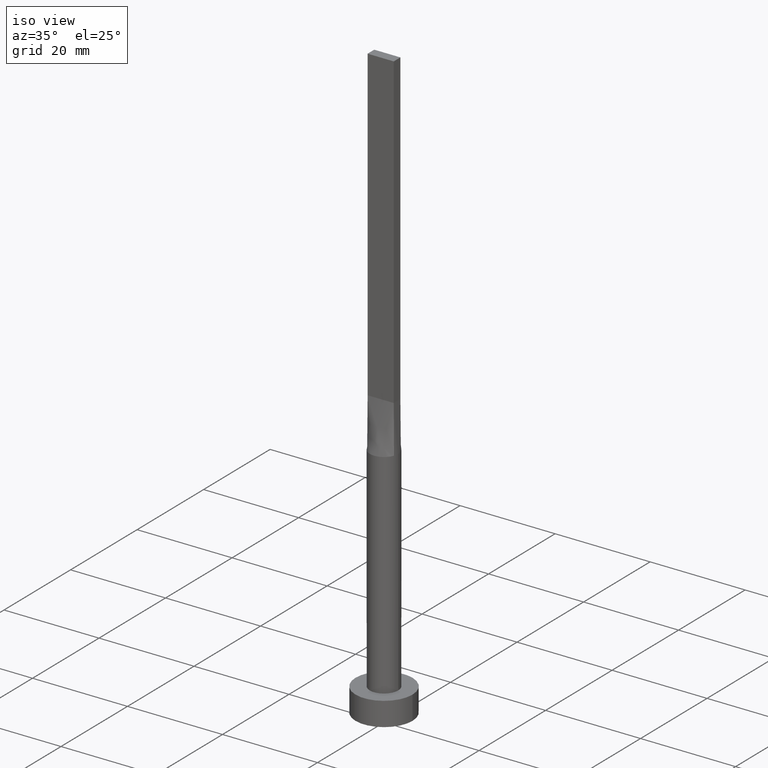
[diagram: clean part render]
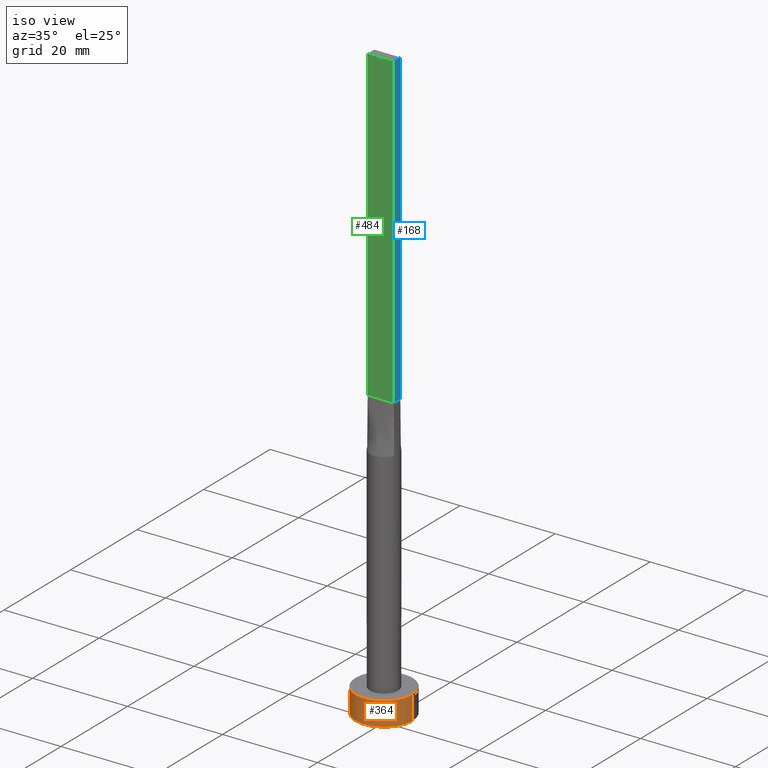
[diagram: same view with three faces highlighted in distinct colors, each labeled with its STEP entity id]
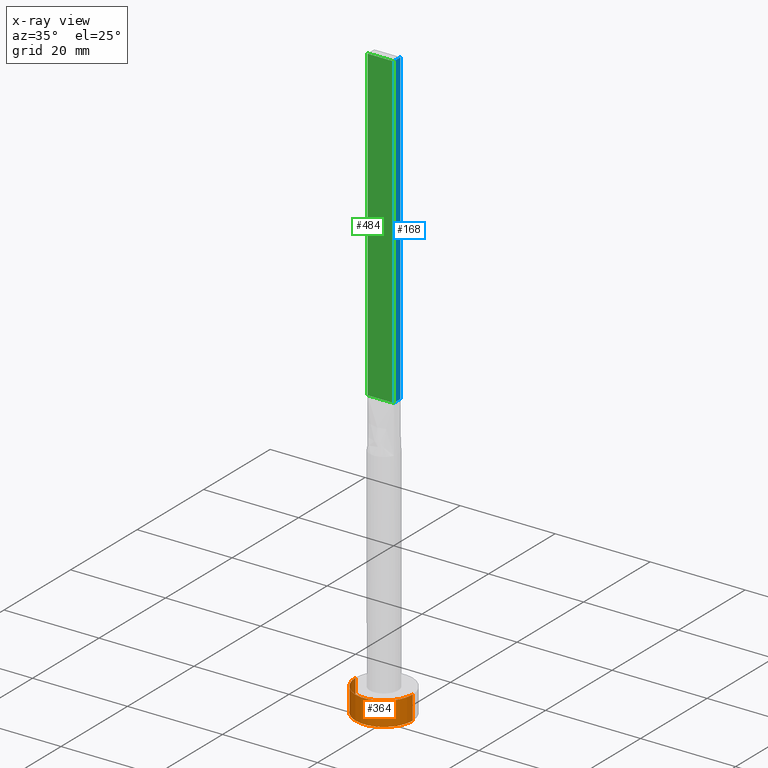
[diagram: x-ray of the same camera — body ghosted, the three highlighted faces saturated]
A machine part, iso view with three faces highlighted in distinct colors.
The next image is the same camera in x-ray (body ghosted, the three faces saturated) — at least one of them is partly hidden behind the body in this view.
Their STEP definitions:

[orange] entity #364 — the highlighted cylindrical surface (edge-blend (fillet) strip) has radius 6 mm, axis along (-0, -0, -1).
#15 = LINE ( 'NONE', #190, #174 ) ;
#18 = CYLINDRICAL_SURFACE ( 'NONE', #100, 6.000000000000000888 ) ;
#50 = EDGE_CURVE ( 'NONE', #436, #536, #429, .T. ) ;
#83 = ORIENTED_EDGE ( 'NONE', *, *, #353, .F. ) ;
#100 = AXIS2_PLACEMENT_3D ( 'NONE', #414, #361, #314 ) ;
#108 = CARTESIAN_POINT ( 'NONE',  ( 0.000000000000000000, 0.000000000000000000, 5.000000000000000000 ) ) ;
#119 = AXIS2_PLACEMENT_3D ( 'NONE', #574, #166, #529 ) ;
#123 = EDGE_CURVE ( 'NONE', #327, #436, #15, .T. ) ;
#134 = CARTESIAN_POINT ( 'NONE',  ( 6.000000000000000888, 7.347880794884120722E-16, 5.000000000000000000 ) ) ;
#135 = EDGE_LOOP ( 'NONE', ( #83, #444, #259, #493 ) ) ;
#143 = DIRECTION ( 'NONE',  ( -0.000000000000000000, -0.000000000000000000, -1.000000000000000000 ) ) ;
#166 = DIRECTION ( 'NONE',  ( 0.000000000000000000, 0.000000000000000000, 1.000000000000000000 ) ) ;
#174 = VECTOR ( 'NONE', #423, 1000.000000000000000 ) ;
#175 = FACE_OUTER_BOUND ( 'NONE', #135, .T. ) ;
#190 = CARTESIAN_POINT ( 'NONE',  ( -6.000000000000000888, 0.000000000000000000, 5.000000000000000000 ) ) ;
#228 = CARTESIAN_POINT ( 'NONE',  ( 6.000000000000000888, 7.347880794884120722E-16, 5.000000000000000000 ) ) ;
#255 = LINE ( 'NONE', #228, #454 ) ;
#259 = ORIENTED_EDGE ( 'NONE', *, *, #123, .T. ) ;
#284 = DIRECTION ( 'NONE',  ( 1.000000000000000000, 0.000000000000000000, 0.000000000000000000 ) ) ;
#314 = DIRECTION ( 'NONE',  ( -1.000000000000000000, 0.000000000000000000, 0.000000000000000000 ) ) ;
#325 = CARTESIAN_POINT ( 'NONE',  ( 6.000000000000000888, 7.347880794884120722E-16, 0.000000000000000000 ) ) ;
#327 = VERTEX_POINT ( 'NONE', #422 ) ;
#341 = VERTEX_POINT ( 'NONE', #134 ) ;
#353 = EDGE_CURVE ( 'NONE', #341, #536, #255, .T. ) ;
#361 = DIRECTION ( 'NONE',  ( -0.000000000000000000, -0.000000000000000000, -1.000000000000000000 ) ) ;
#364 = ADVANCED_FACE ( 'NONE', ( #175 ), #18, .T. ) ;
#414 = CARTESIAN_POINT ( 'NONE',  ( 0.000000000000000000, 0.000000000000000000, 5.000000000000000000 ) ) ;
#422 = CARTESIAN_POINT ( 'NONE',  ( -6.000000000000000888, 0.000000000000000000, 5.000000000000000000 ) ) ;
#423 = DIRECTION ( 'NONE',  ( -0.000000000000000000, -0.000000000000000000, -1.000000000000000000 ) ) ;
#429 = CIRCLE ( 'NONE', #119, 6.000000000000000888 ) ;
#436 = VERTEX_POINT ( 'NONE', #473 ) ;
#437 = AXIS2_PLACEMENT_3D ( 'NONE', #108, #470, #284 ) ;
#444 = ORIENTED_EDGE ( 'NONE', *, *, #507, .F. ) ;
#454 = VECTOR ( 'NONE', #143, 1000.000000000000000 ) ;
#470 = DIRECTION ( 'NONE',  ( 0.000000000000000000, 0.000000000000000000, 1.000000000000000000 ) ) ;
#473 = CARTESIAN_POINT ( 'NONE',  ( -6.000000000000000888, 0.000000000000000000, 0.000000000000000000 ) ) ;
#487 = CIRCLE ( 'NONE', #437, 6.000000000000000888 ) ;
#493 = ORIENTED_EDGE ( 'NONE', *, *, #50, .T. ) ;
#507 = EDGE_CURVE ( 'NONE', #327, #341, #487, .T. ) ;
#529 = DIRECTION ( 'NONE',  ( 1.000000000000000000, 0.000000000000000000, 0.000000000000000000 ) ) ;
#536 = VERTEX_POINT ( 'NONE', #325 ) ;
#574 = CARTESIAN_POINT ( 'NONE',  ( 0.000000000000000000, 0.000000000000000000, 0.000000000000000000 ) ) ;

[blue] entity #168 — the highlighted planar face has unit normal (-1, -0, 0).
#20 = FACE_OUTER_BOUND ( 'NONE', #543, .T. ) ;
#22 = DIRECTION ( 'NONE',  ( -2.168404344971008868E-16, 1.000000000000000000, -0.000000000000000000 ) ) ;
#24 = CARTESIAN_POINT ( 'NONE',  ( 2.749999999999999556, 1.000000000000000000, 125.0000000000000000 ) ) ;
#47 = VERTEX_POINT ( 'NONE', #247 ) ;
#49 = ORIENTED_EDGE ( 'NONE', *, *, #90, .F. ) ;
#66 = CARTESIAN_POINT ( 'NONE',  ( 2.749999999999999556, 1.000000000000000000, 125.0000000000000000 ) ) ;
#67 = LINE ( 'NONE', #238, #179 ) ;
#90 = EDGE_CURVE ( 'NONE', #386, #479, #271, .T. ) ;
#107 = DIRECTION ( 'NONE',  ( -1.000000000000000000, -2.168404344971008621E-16, 0.000000000000000000 ) ) ;
#111 = CARTESIAN_POINT ( 'NONE',  ( 2.749999999999999556, 1.000000000000000000, 60.00000000000000000 ) ) ;
#132 = LINE ( 'NONE', #496, #337 ) ;
#147 = AXIS2_PLACEMENT_3D ( 'NONE', #517, #107, #279 ) ;
#154 = LINE ( 'NONE', #281, #521 ) ;
#168 = ADVANCED_FACE ( 'NONE', ( #20 ), #321, .F. ) ;
#179 = VECTOR ( 'NONE', #571, 1000.000000000000000 ) ;
#185 = ORIENTED_EDGE ( 'NONE', *, *, #514, .T. ) ;
#208 = EDGE_CURVE ( 'NONE', #356, #479, #154, .T. ) ;
#230 = DIRECTION ( 'NONE',  ( -0.000000000000000000, -0.000000000000000000, -1.000000000000000000 ) ) ;
#238 = CARTESIAN_POINT ( 'NONE',  ( 2.750000000000000000, -0.9999999999999997780, 125.0000000000000000 ) ) ;
#247 = CARTESIAN_POINT ( 'NONE',  ( 2.750000000000000000, -0.9999999999999997780, 125.0000000000000000 ) ) ;
#271 = LINE ( 'NONE', #66, #503 ) ;
#279 = DIRECTION ( 'NONE',  ( 2.168404344971008621E-16, -1.000000000000000000, 0.000000000000000000 ) ) ;
#281 = CARTESIAN_POINT ( 'NONE',  ( 2.749999999999999556, 1.000000000000000000, 60.00000000000000000 ) ) ;
#321 = PLANE ( 'NONE',  #147 ) ;
#337 = VECTOR ( 'NONE', #538, 1000.000000000000000 ) ;
#356 = VERTEX_POINT ( 'NONE', #443 ) ;
#386 = VERTEX_POINT ( 'NONE', #24 ) ;
#438 = ORIENTED_EDGE ( 'NONE', *, *, #208, .T. ) ;
#443 = CARTESIAN_POINT ( 'NONE',  ( 2.750000000000000000, -0.9999999999999997780, 60.00000000000000000 ) ) ;
#479 = VERTEX_POINT ( 'NONE', #111 ) ;
#496 = CARTESIAN_POINT ( 'NONE',  ( 2.750000000000000000, -0.9999999999999997780, 125.0000000000000000 ) ) ;
#503 = VECTOR ( 'NONE', #230, 1000.000000000000000 ) ;
#514 = EDGE_CURVE ( 'NONE', #47, #356, #67, .T. ) ;
#517 = CARTESIAN_POINT ( 'NONE',  ( 2.750000000000000000, -0.9999999999999997780, 125.0000000000000000 ) ) ;
#521 = VECTOR ( 'NONE', #22, 1000.000000000000000 ) ;
#538 = DIRECTION ( 'NONE',  ( -2.168404344971008868E-16, 1.000000000000000000, 0.000000000000000000 ) ) ;
#543 = EDGE_LOOP ( 'NONE', ( #438, #49, #549, #185 ) ) ;
#547 = EDGE_CURVE ( 'NONE', #47, #386, #132, .T. ) ;
#549 = ORIENTED_EDGE ( 'NONE', *, *, #547, .F. ) ;
#571 = DIRECTION ( 'NONE',  ( -0.000000000000000000, -0.000000000000000000, -1.000000000000000000 ) ) ;

[green] entity #484 — the highlighted planar face has unit normal (0, 1, -0).
#43 = VERTEX_POINT ( 'NONE', #288 ) ;
#47 = VERTEX_POINT ( 'NONE', #247 ) ;
#67 = LINE ( 'NONE', #238, #179 ) ;
#89 = CARTESIAN_POINT ( 'NONE',  ( -2.750000000000000000, -0.9999999999999993339, 125.0000000000000000 ) ) ;
#109 = AXIS2_PLACEMENT_3D ( 'NONE', #163, #380, #248 ) ;
#110 = EDGE_CURVE ( 'NONE', #306, #43, #506, .T. ) ;
#124 = ORIENTED_EDGE ( 'NONE', *, *, #110, .T. ) ;
#136 = VECTOR ( 'NONE', #332, 1000.000000000000000 ) ;
#157 = FACE_OUTER_BOUND ( 'NONE', #347, .T. ) ;
#160 = CARTESIAN_POINT ( 'NONE',  ( -2.750000000000000000, -0.9999999999999993339, 60.00000000000000000 ) ) ;
#163 = CARTESIAN_POINT ( 'NONE',  ( -2.750000000000000000, -0.9999999999999993339, 125.0000000000000000 ) ) ;
#179 = VECTOR ( 'NONE', #571, 1000.000000000000000 ) ;
#192 = DIRECTION ( 'NONE',  ( -0.000000000000000000, -0.000000000000000000, -1.000000000000000000 ) ) ;
#199 = ORIENTED_EDGE ( 'NONE', *, *, #514, .F. ) ;
#213 = LINE ( 'NONE', #89, #236 ) ;
#236 = VECTOR ( 'NONE', #442, 1000.000000000000000 ) ;
#238 = CARTESIAN_POINT ( 'NONE',  ( 2.750000000000000000, -0.9999999999999997780, 125.0000000000000000 ) ) ;
#247 = CARTESIAN_POINT ( 'NONE',  ( 2.750000000000000000, -0.9999999999999997780, 125.0000000000000000 ) ) ;
#248 = DIRECTION ( 'NONE',  ( -1.000000000000000000, 7.885106708985487801E-17, 0.000000000000000000 ) ) ;
#257 = EDGE_CURVE ( 'NONE', #43, #356, #324, .T. ) ;
#288 = CARTESIAN_POINT ( 'NONE',  ( -2.750000000000000000, -0.9999999999999993339, 60.00000000000000000 ) ) ;
#289 = PLANE ( 'NONE',  #109 ) ;
#306 = VERTEX_POINT ( 'NONE', #563 ) ;
#324 = LINE ( 'NONE', #160, #136 ) ;
#330 = ORIENTED_EDGE ( 'NONE', *, *, #257, .T. ) ;
#332 = DIRECTION ( 'NONE',  ( 1.000000000000000000, -7.885106708985487801E-17, 0.000000000000000000 ) ) ;
#338 = VECTOR ( 'NONE', #192, 1000.000000000000000 ) ;
#347 = EDGE_LOOP ( 'NONE', ( #330, #199, #430, #124 ) ) ;
#356 = VERTEX_POINT ( 'NONE', #443 ) ;
#380 = DIRECTION ( 'NONE',  ( 7.885106708985487801E-17, 1.000000000000000000, -0.000000000000000000 ) ) ;
#416 = CARTESIAN_POINT ( 'NONE',  ( -2.750000000000000000, -0.9999999999999993339, 125.0000000000000000 ) ) ;
#430 = ORIENTED_EDGE ( 'NONE', *, *, #569, .F. ) ;
#442 = DIRECTION ( 'NONE',  ( 1.000000000000000000, -7.885106708985487801E-17, 0.000000000000000000 ) ) ;
#443 = CARTESIAN_POINT ( 'NONE',  ( 2.750000000000000000, -0.9999999999999997780, 60.00000000000000000 ) ) ;
#484 = ADVANCED_FACE ( 'NONE', ( #157 ), #289, .F. ) ;
#506 = LINE ( 'NONE', #416, #338 ) ;
#514 = EDGE_CURVE ( 'NONE', #47, #356, #67, .T. ) ;
#563 = CARTESIAN_POINT ( 'NONE',  ( -2.750000000000000000, -0.9999999999999993339, 125.0000000000000000 ) ) ;
#569 = EDGE_CURVE ( 'NONE', #306, #47, #213, .T. ) ;
#571 = DIRECTION ( 'NONE',  ( -0.000000000000000000, -0.000000000000000000, -1.000000000000000000 ) ) ;